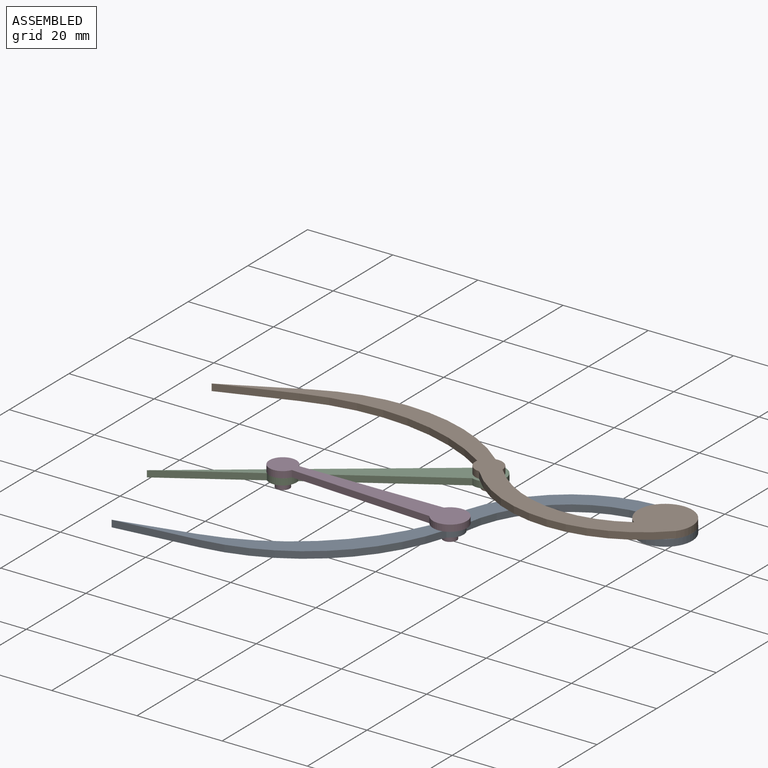
[diagram: assembled view]
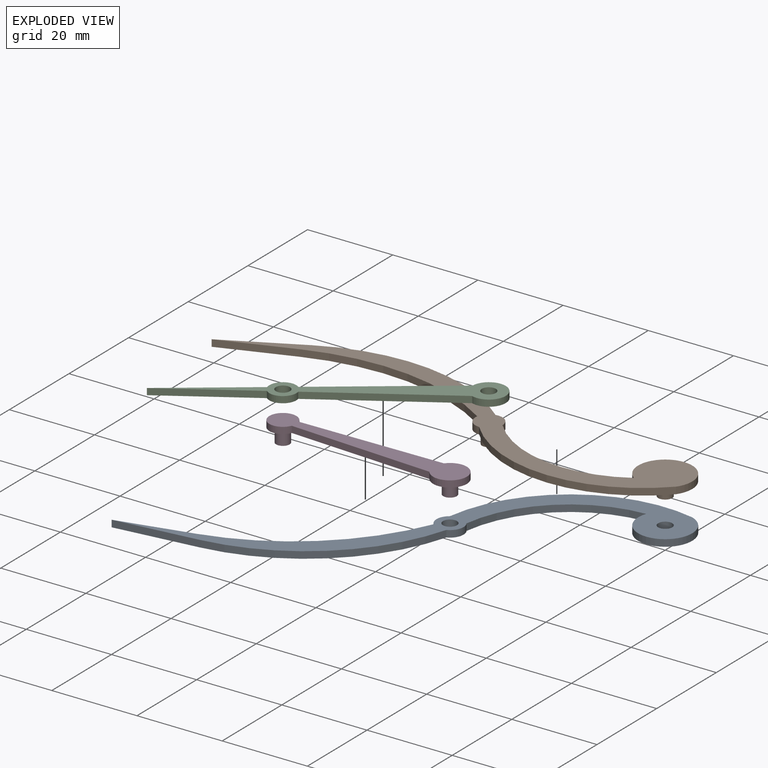
[diagram: exploded view]
GUIDED TOUR — MATED ASSEMBLY (Onshape document de49a4fedd35c420a6f81c07, AutoMate assembly de49a4fedd35c420a6f81c07_cccdab130b011665d8c6db7d_04cd0a10cbeba3ebd86fd0f8_default)

This assembly has 4 components, labeled P0..P3 below (a component is one placed occurrence of a part; the same part can appear more than once), held together by 4 mates. A mate is a constraint between two components; its type names the relative motion it leaves free:
  REVOLUTE — leaves rotation about the listed axis free (a hinge).
Axis/direction vectors are unit vectors and 'through' points are millimeter coordinates, both in the assembly's world frame.

MATES
  1. REVOLUTE "Revolute 2": P1 <-> P2, axis (0.000, 0.000, -1.000) through (-41.40, 0.00, 0.00) mm
  2. REVOLUTE "Revolute 1": P0 <-> P1, axis (0.000, 0.000, 1.000) through (0.00, 0.00, 0.00) mm
  3. REVOLUTE "Revolute 3": P2 <-> P3, axis (0.000, 0.000, 1.000) through (-74.31, -22.07, 0.00) mm
  4. REVOLUTE "Revolute 4": P0 <-> P3, axis (0.000, 0.000, 1.000) through (-34.47, -22.94, 0.00) mm

ASSEMBLY ORDER
  1. P0 — the base component [order heuristic]
  2. P1 [order heuristic]
  3. P3 [order heuristic]
  4. P2 [order heuristic]
Order-tag legend:
  [order heuristic] — this assembly is geometrically interlocked (no collision-free removal order exists), so components are listed in mate-graph order; insertion feasibility is not verified.

Of the 4 components, 4 carry the full construction recipe — the FeatureScript program that regenerates the part's solid from scratch; the rest are supplied as boundary geometry only.
Each toured component is shown spotlighted twice — in the assembled view, then in the exploded view, where a leader line traces a displaced component back to its assembled socket (saturated green if recipe-attached, orange if geometry-only; every other component desaturated gray) — followed by its recipe or geometry summary and the mates that hold it.
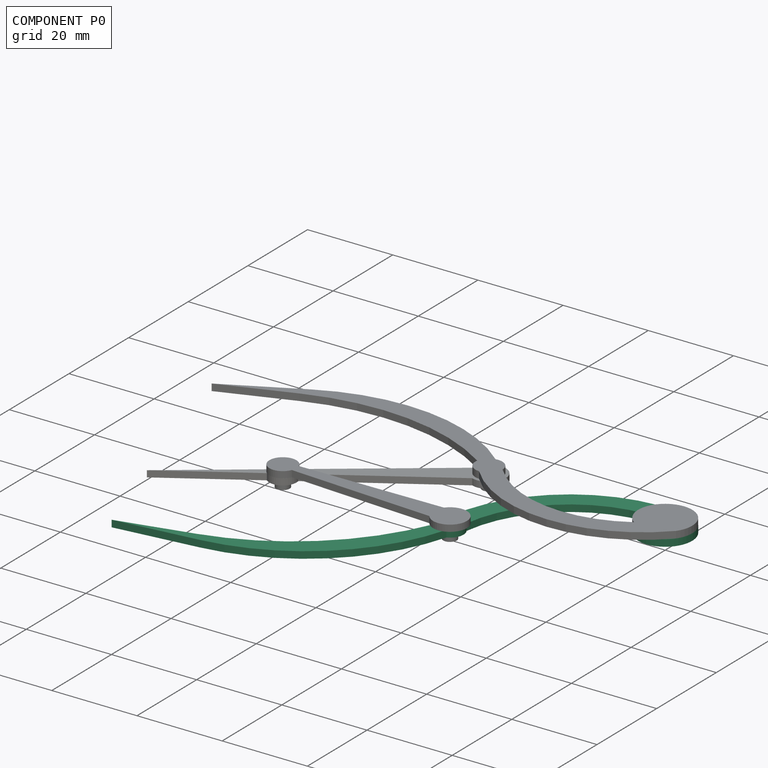
[diagram: component P0 — assembled]
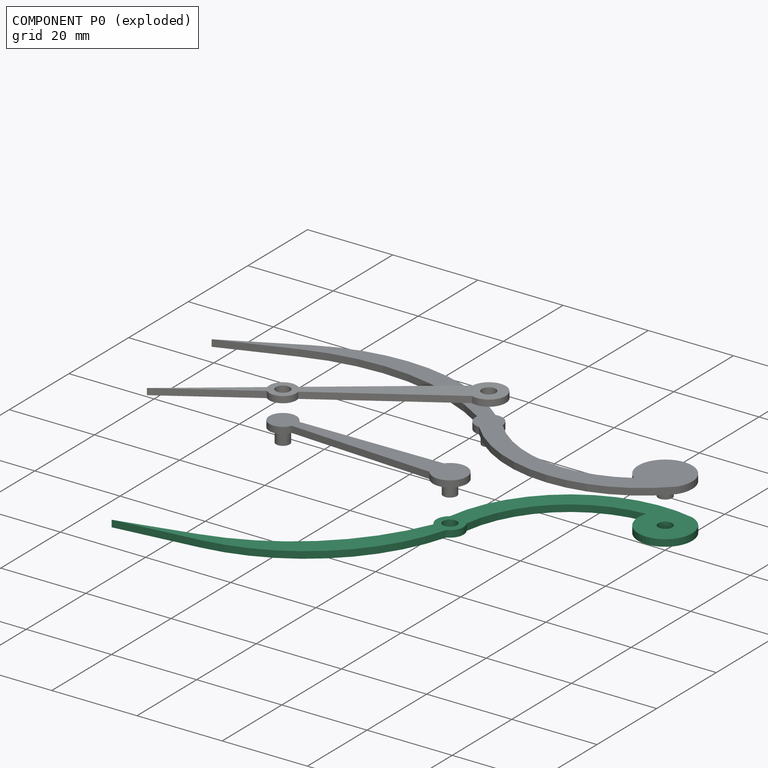
[diagram: component P0 — exploded]
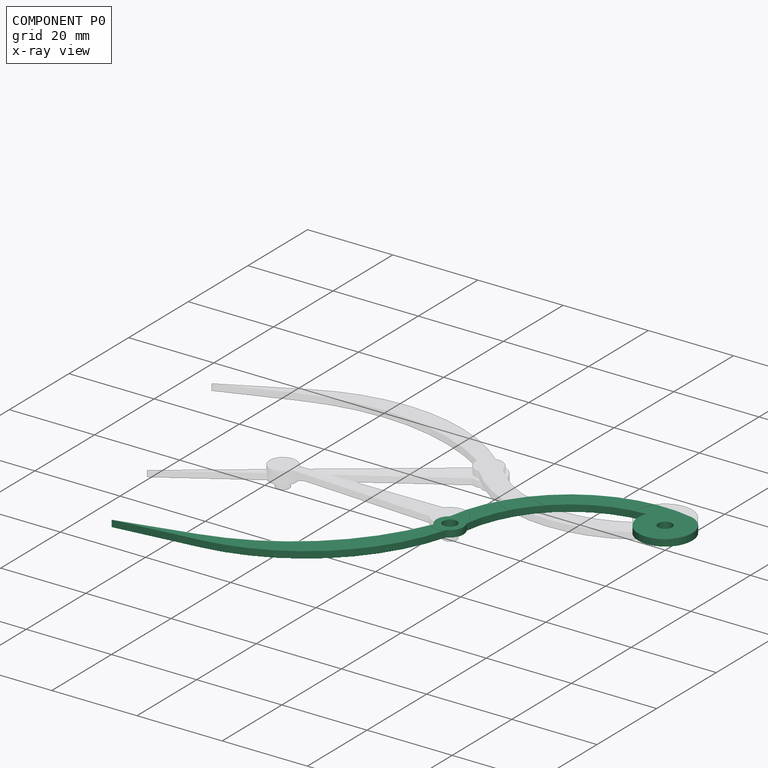
[diagram: component P0 — x-ray view]
COMPONENT P0 — recipe-attached (CADFS 00923419, mesh-verified: the recipe's output STEP matches this component's geometry to below the mesh-comparison resolution (tessellation chordal tolerance ~0.174 mm)).
Held by: REVOLUTE mate "Revolute 1" to P1; REVOLUTE mate "Revolute 4" to P3.
Construction recipe (FeatureScript — the CAD program that rebuilds this solid; sketch coordinates are in the units given by the * unit suffixes, e.g. mm):

FeatureScript 1511;
import(path : "onshape/std/geometry.fs", version : "1511.0");
import(path : "onshape/std/common.fs", version : "1511.0");
const mm = millimeter;
const VERTEX = EntityType.VERTEX;
const EDGE = EntityType.EDGE;
const FACE = EntityType.FACE;
const BODY = EntityType.BODY;
function v(x, y){return vector(x, y);}
function OD(order){return orderDisambiguation(order);}
function OSD(set){return originalSetDisambiguation(set);}
function TD(topology){return topologyDisambiguation(topology);}
function TDD(query){return trueDependencyDisambiguation(query);}
function sQuery(a, b, c) {return sketchEntityQuery(a, b, c);}

annotation { "Feature Type Name" : "Feature", "Feature Type Description" : "" }
export const myFeature = defineFeature(function(context is Context, id is Id, definition is map)
    precondition{}
    {
        {
            var Q0;
            Q0=qCreatedBy(makeId("Top.planeOp"),FACE);
            var sketch = newSketch(context, id + "F0", { "sketchPlane" : qUnion([Q0])});
            skArc(sketch, "E0", {"start": v(-38.23, 0.04) * mm, "mid": v(-21.93, -8.78) * mm, "end": v(-3.77, -5.1) * mm});
            skArc(sketch, "E1", {"start": v(-41.48, -3.17) * mm, "mid": v(-18.29, -13.65) * mm, "end": v(5.15, -3.72) * mm});
            skArc(sketch, "E2", {"start": v(5.15, -3.72) * mm, "mid": v(-0.98, 6.27) * mm, "end": v(-3.77, -5.1) * mm});
            skLineSegment(sketch, "E3", {"start": v(-106.5, 0) * mm, "end": v(-89.19, 8.82) * mm});
            skLineSegment(sketch, "E4", {"start": v(-106.5, 0) * mm, "end": v(-90.02, 6) * mm});
            skLineSegment(sketch, "E5", {"start": v(-106.5, 0) * mm, "end": v(-87.48, 0) * mm, "construction": true});
            skArc(sketch, "E6", {"start": v(-44.53, 0.57) * mm, "mid": v(-66.63, 8.7) * mm, "end": v(-90.02, 6) * mm});
            skArc(sketch, "E7", {"start": v(-42.02, 3.11) * mm, "mid": v(-64.73, 13.16) * mm, "end": v(-89.19, 8.82) * mm});
            skArc(sketch, "E8", {"start": v(-38.23, 0.04) * mm, "mid": v(-39.4, 2.47) * mm, "end": v(-42.02, 3.11) * mm});
            skArc(sketch, "E9", {"start": v(-44.53, 0.57) * mm, "mid": v(-43.87, -2) * mm, "end": v(-41.48, -3.17) * mm});
            skLineSegment(sketch, "E10", {"start": v(-69.85, -29.13) * mm, "end": v(-72.64, -41.74) * mm, "construction": true});
            skCircle(sketch, "E11", {"center": v(-41.4, 0) * mm, "radius": 1.65 * mm});
            skCircle(sketch, "E12", {"center": v(0, 0) * mm, "radius": 1.65 * mm});
            skSolve(sketch);
        }
        {
            var Q0;
            Q0=qSketchRegion(id+"F0",true);
            extrude(context, id + "F1", {"entities" : qUnion([Q0]), "depth" : 1.6 * mm, "offsetDistance" : 25.4 * mm});
        }
    });
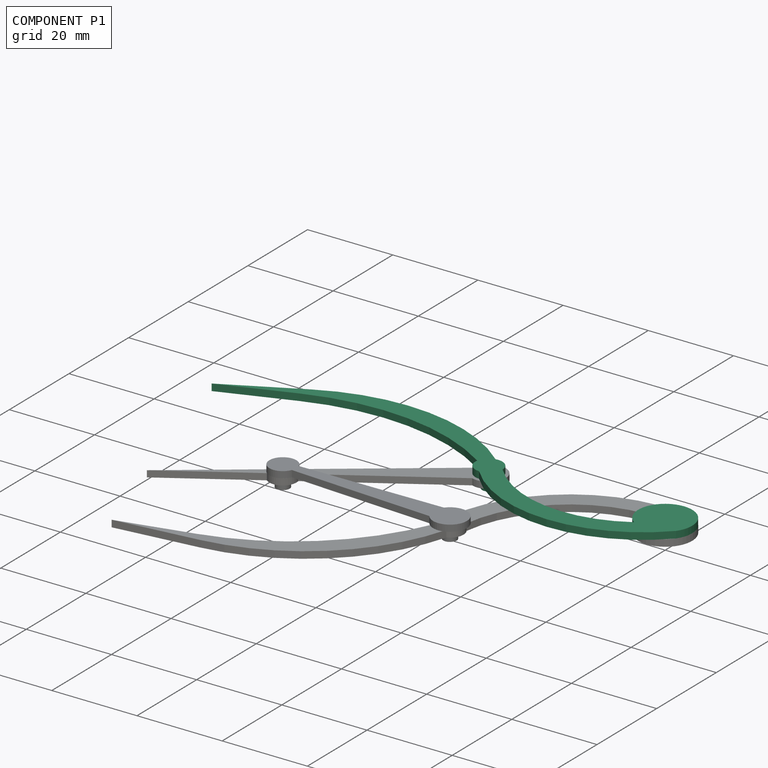
[diagram: component P1 — assembled]
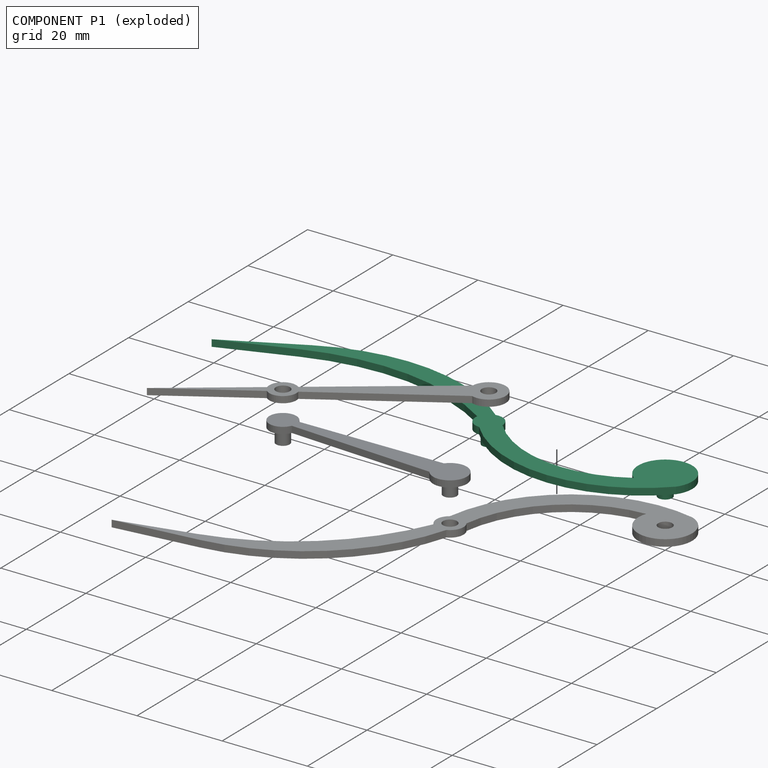
[diagram: component P1 — exploded]
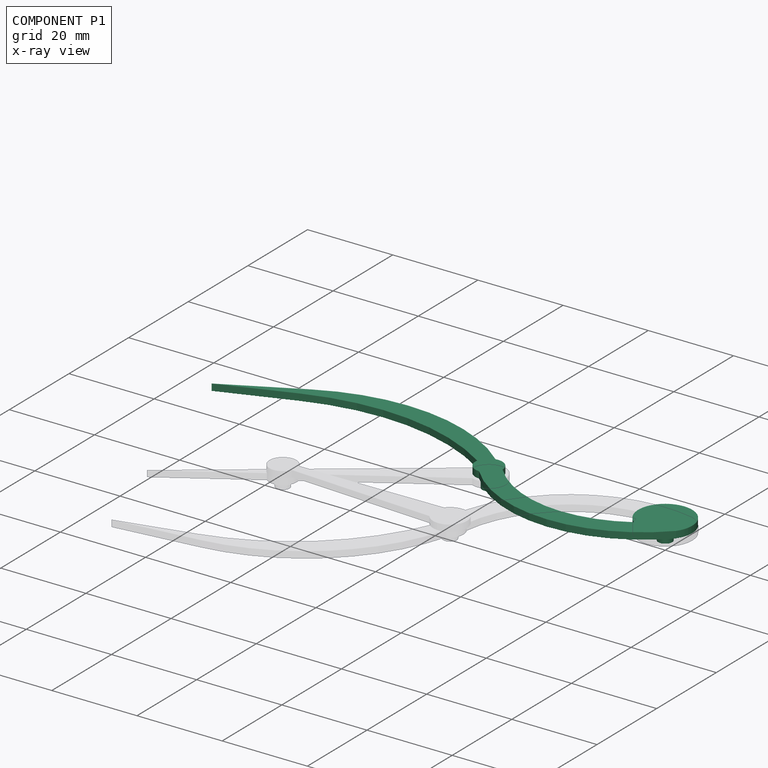
[diagram: component P1 — x-ray view]
COMPONENT P1 — recipe-attached (CADFS 00923418, mesh-verified: the recipe's output STEP matches this component's geometry to below the mesh-comparison resolution (tessellation chordal tolerance ~0.174 mm)).
Held by: REVOLUTE mate "Revolute 2" to P2; REVOLUTE mate "Revolute 1" to P0.
Construction recipe (FeatureScript — the CAD program that rebuilds this solid; sketch coordinates are in the units given by the * unit suffixes, e.g. mm):

FeatureScript 1511;
import(path : "onshape/std/geometry.fs", version : "1511.0");
import(path : "onshape/std/common.fs", version : "1511.0");
const mm = millimeter;
const VERTEX = EntityType.VERTEX;
const EDGE = EntityType.EDGE;
const FACE = EntityType.FACE;
const BODY = EntityType.BODY;
function v(x, y){return vector(x, y);}
function OD(order){return orderDisambiguation(order);}
function OSD(set){return originalSetDisambiguation(set);}
function TD(topology){return topologyDisambiguation(topology);}
function TDD(query){return trueDependencyDisambiguation(query);}
function sQuery(a, b, c) {return sketchEntityQuery(a, b, c);}

annotation { "Feature Type Name" : "Feature", "Feature Type Description" : "" }
export const myFeature = defineFeature(function(context is Context, id is Id, definition is map)
    precondition{}
    {
        {
            var Q0;
            Q0=qCreatedBy(makeId("Top.planeOp"),FACE);
            var sketch = newSketch(context, id + "F0", { "sketchPlane" : qUnion([Q0])});
            skArc(sketch, "E0", {"start": v(-38.23, 0.04) * mm, "mid": v(-21.93, -8.78) * mm, "end": v(-3.77, -5.1) * mm});
            skArc(sketch, "E1", {"start": v(-41.48, -3.17) * mm, "mid": v(-18.29, -13.65) * mm, "end": v(5.15, -3.72) * mm});
            skArc(sketch, "E2", {"start": v(5.15, -3.72) * mm, "mid": v(-0.98, 6.27) * mm, "end": v(-3.77, -5.1) * mm});
            skLineSegment(sketch, "E3", {"start": v(-106.5, 0) * mm, "end": v(-89.19, 8.82) * mm});
            skLineSegment(sketch, "E4", {"start": v(-106.5, 0) * mm, "end": v(-90.02, 6) * mm});
            skLineSegment(sketch, "E5", {"start": v(-106.5, 0) * mm, "end": v(-87.48, 0) * mm, "construction": true});
            skArc(sketch, "E6", {"start": v(-44.53, 0.57) * mm, "mid": v(-66.63, 8.7) * mm, "end": v(-90.02, 6) * mm});
            skArc(sketch, "E7", {"start": v(-42.02, 3.11) * mm, "mid": v(-64.73, 13.16) * mm, "end": v(-89.19, 8.82) * mm});
            skArc(sketch, "E8", {"start": v(-38.23, 0.04) * mm, "mid": v(-39.4, 2.47) * mm, "end": v(-42.02, 3.11) * mm});
            skArc(sketch, "E9", {"start": v(-44.53, 0.57) * mm, "mid": v(-43.87, -2) * mm, "end": v(-41.48, -3.17) * mm});
            skLineSegment(sketch, "E10", {"start": v(-69.85, -29.13) * mm, "end": v(-72.64, -41.74) * mm, "construction": true});
            skCircle(sketch, "E11", {"center": v(-41.4, 0) * mm, "radius": 1.59 * mm});
            skCircle(sketch, "E12", {"center": v(0, 0) * mm, "radius": 1.65 * mm});
            skSolve(sketch);
        }
        {
            var Q0;
            Q0 = qSketchRegion(id + "F0", true);
            extrude(context, id + "F1", {"entities" : qUnion([Q0]), "depth" : 1.6 * mm, "offsetDistance" : 25.4 * mm});
        }
        {
            var Q0;
            Q0=makeQuery(id+"F1.opExtrude","CAP_FACE",FACE,{"disambiguationData":[OSD([sQuery(id+"F0.wireOp",EDGE,"E0"),sQuery(id+"F0.wireOp",EDGE,"E1"),sQuery(id+"F0.wireOp",EDGE,"E2"),sQuery(id+"F0.wireOp",EDGE,"E3"),sQuery(id+"F0.wireOp",EDGE,"E4"),sQuery(id+"F0.wireOp",EDGE,"E6"),sQuery(id+"F0.wireOp",EDGE,"E7"),sQuery(id+"F0.wireOp",EDGE,"E8"),sQuery(id+"F0.wireOp",EDGE,"E9"),sQuery(id+"F0.wireOp",EDGE,"E11"),sQuery(id+"F0.wireOp",EDGE,"E12")])],"isStart":false});
            var sketch = newSketch(context, id + "F2", { "sketchPlane" : qUnion([Q0])});
            skCircle(sketch, "E13", {"center": v(-41.4, 0) * mm, "radius": 1.59 * mm});
            skCircle(sketch, "E14", {"center": v(0, 0) * mm, "radius": 1.65 * mm});
            skSolve(sketch);
        }
        {
            var Q0;
            Q0 = qSketchRegion(id + "F2", true);
            extrude(context, id + "F3", {"entities" : qUnion([Q0]), "operationType" : NewBodyOperationType.ADD, "oppositeDirection" : true, "depth" : 4.78 * mm, "offsetDistance" : 25.4 * mm});
        }
    });
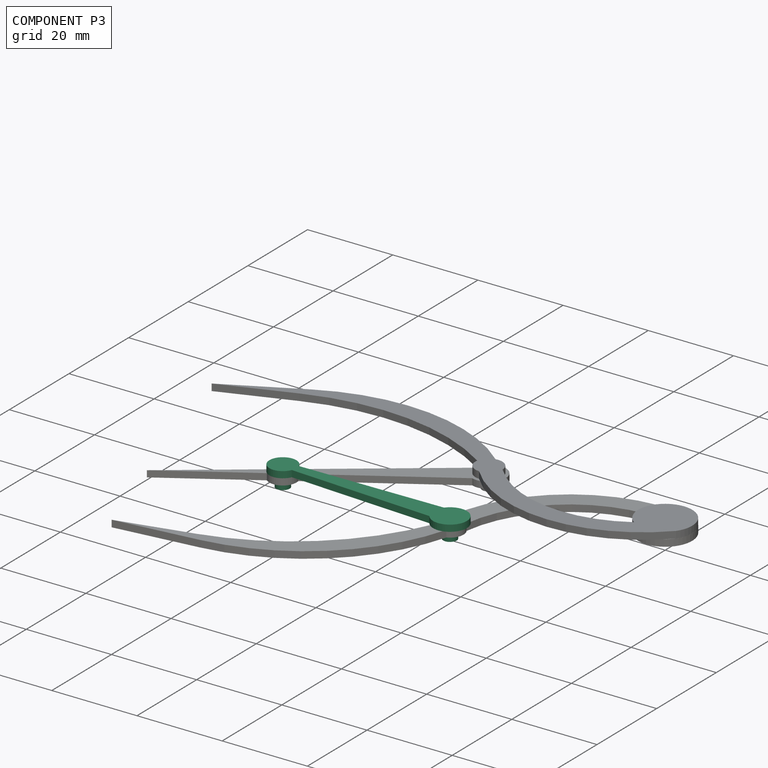
[diagram: component P3 — assembled]
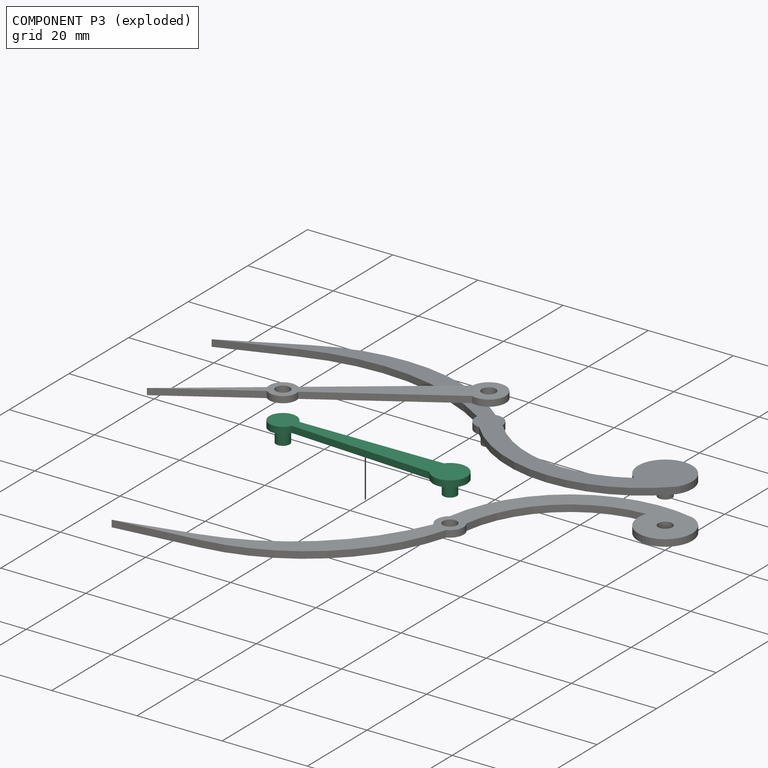
[diagram: component P3 — exploded]
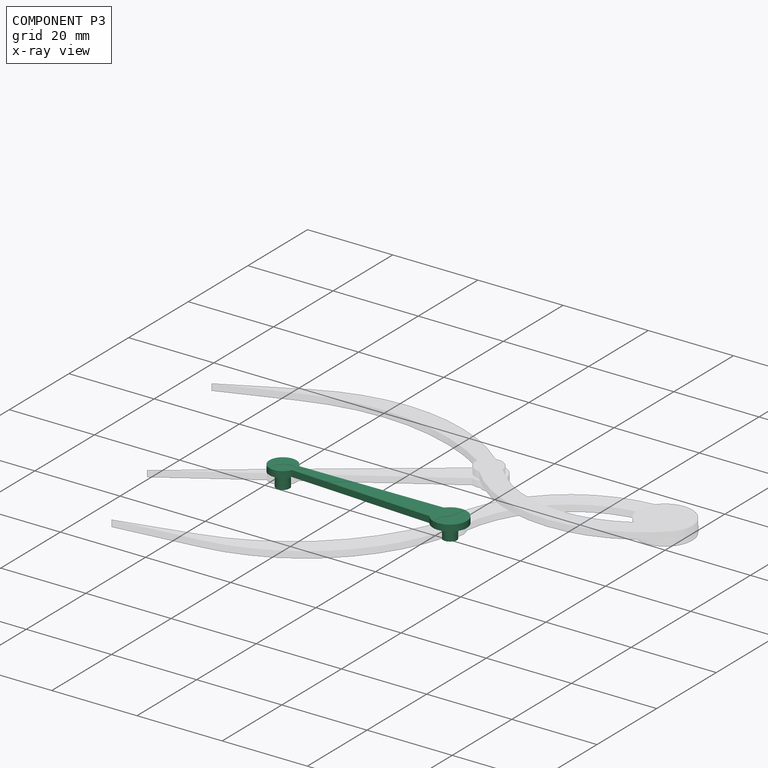
[diagram: component P3 — x-ray view]
COMPONENT P3 — recipe-attached (CADFS 00923421, mesh-verified: the recipe's output STEP matches this component's geometry to below the mesh-comparison resolution (tessellation chordal tolerance ~0.0718 mm)).
Held by: REVOLUTE mate "Revolute 3" to P2; REVOLUTE mate "Revolute 4" to P0.
Construction recipe (FeatureScript — the CAD program that rebuilds this solid; sketch coordinates are in the units given by the * unit suffixes, e.g. mm):

FeatureScript 1511;
import(path : "onshape/std/geometry.fs", version : "1511.0");
import(path : "onshape/std/common.fs", version : "1511.0");
const mm = millimeter;
const VERTEX = EntityType.VERTEX;
const EDGE = EntityType.EDGE;
const FACE = EntityType.FACE;
const BODY = EntityType.BODY;
function v(x, y){return vector(x, y);}
function OD(order){return orderDisambiguation(order);}
function OSD(set){return originalSetDisambiguation(set);}
function TD(topology){return topologyDisambiguation(topology);}
function TDD(query){return trueDependencyDisambiguation(query);}
function sQuery(a, b, c) {return sketchEntityQuery(a, b, c);}

annotation { "Feature Type Name" : "Feature", "Feature Type Description" : "" }
export const myFeature = defineFeature(function(context is Context, id is Id, definition is map)
    precondition{}
    {
        {
            var Q0;
            Q0=qCreatedBy(makeId("Top.planeOp"),FACE);
            var sketch = newSketch(context, id + "F0", { "sketchPlane" : qUnion([Q0])});
            skCircle(sketch, "E0", {"center": v(0, 0) * mm, "radius": 1.59 * mm});
            skCircle(sketch, "E1", {"center": v(-39.85, 0) * mm, "radius": 1.59 * mm});
            skArc(sketch, "E2", {"start": v(-3.18, -2.38) * mm, "mid": v(3.97, 0) * mm, "end": v(-3.17, 2.38) * mm});
            skArc(sketch, "E3", {"start": v(-36.9, 1.14) * mm, "mid": v(-43.03, 0) * mm, "end": v(-36.9, -1.14) * mm});
            skLineSegment(sketch, "E4", {"start": v(-36.9, 1.14) * mm, "end": v(-3.17, 2.38) * mm});
            skLineSegment(sketch, "E5", {"start": v(-3.17, -2.38) * mm, "end": v(-36.9, -1.14) * mm});
            skSolve(sketch);
        }
        {
            var Q0;
            Q0=qSketchRegion(id+"F0",true);
            extrude(context, id + "F1", {"entities" : qUnion([Q0]), "depth" : 1.52 * mm, "offsetDistance" : 25.4 * mm});
        }
        {
            var Q0;
            Q0=makeQuery(id+"F1.opExtrude","CAP_FACE",FACE,{"disambiguationData":[OSD([sQuery(id+"F0.wireOp",EDGE,"E0"),sQuery(id+"F0.wireOp",EDGE,"E1"),sQuery(id+"F0.wireOp",EDGE,"E2"),sQuery(id+"F0.wireOp",EDGE,"E3"),sQuery(id+"F0.wireOp",EDGE,"E4"),sQuery(id+"F0.wireOp",EDGE,"E5")])],"isStart":false});
            var sketch = newSketch(context, id + "F2", { "sketchPlane" : qUnion([Q0])});
            skCircle(sketch, "E6", {"center": v(-39.85, 0) * mm, "radius": 1.59 * mm});
            skCircle(sketch, "E7", {"center": v(0, 0) * mm, "radius": 1.59 * mm});
            skSolve(sketch);
        }
        {
            var Q0;
            Q0 = qSketchRegion(id + "F2", true);
            extrude(context, id + "F3", {"entities" : qUnion([Q0]), "operationType" : NewBodyOperationType.ADD, "oppositeDirection" : true, "depth" : 4.78 * mm, "offsetDistance" : 25.4 * mm});
        }
    });
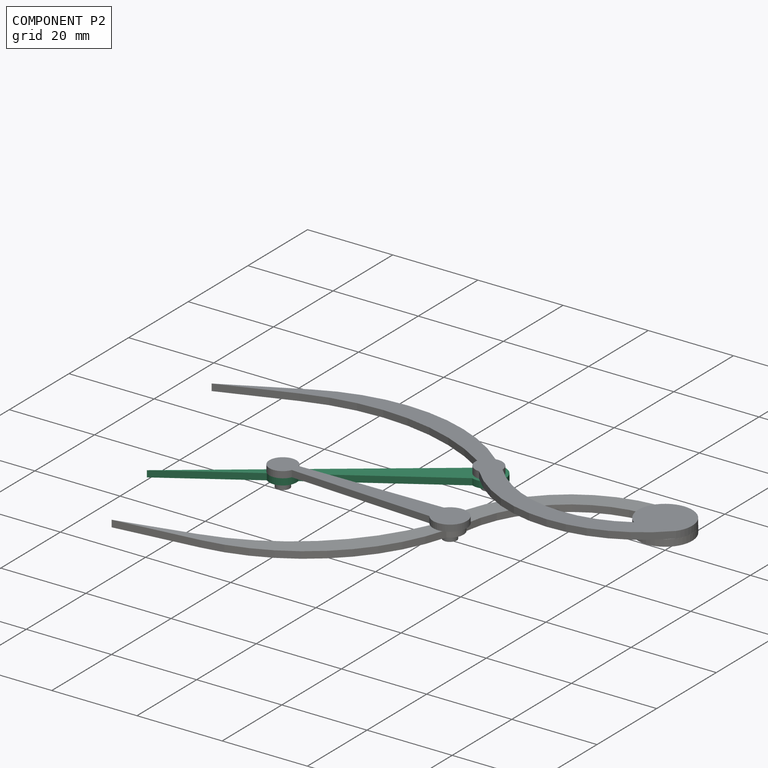
[diagram: component P2 — assembled]
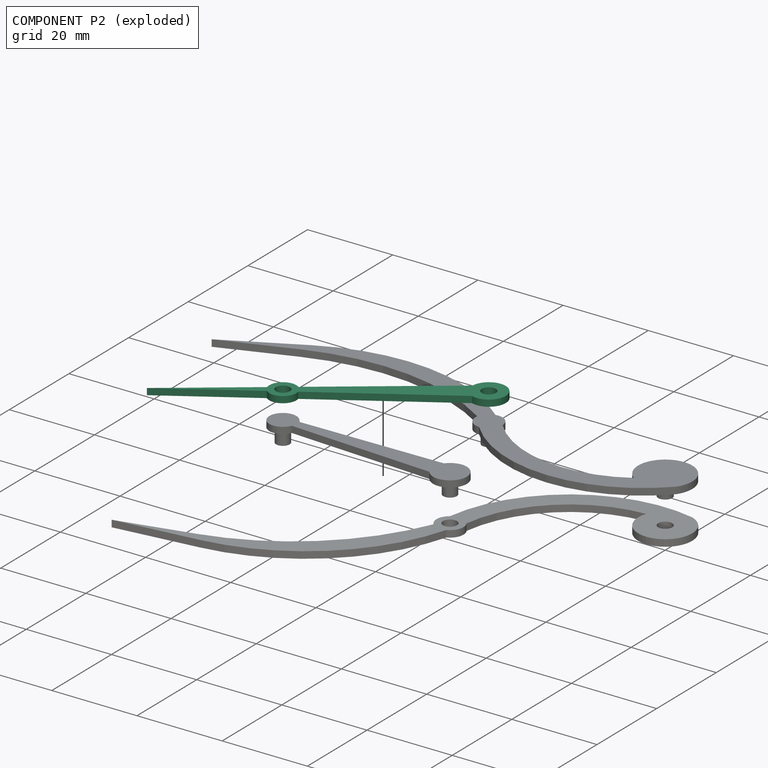
[diagram: component P2 — exploded]
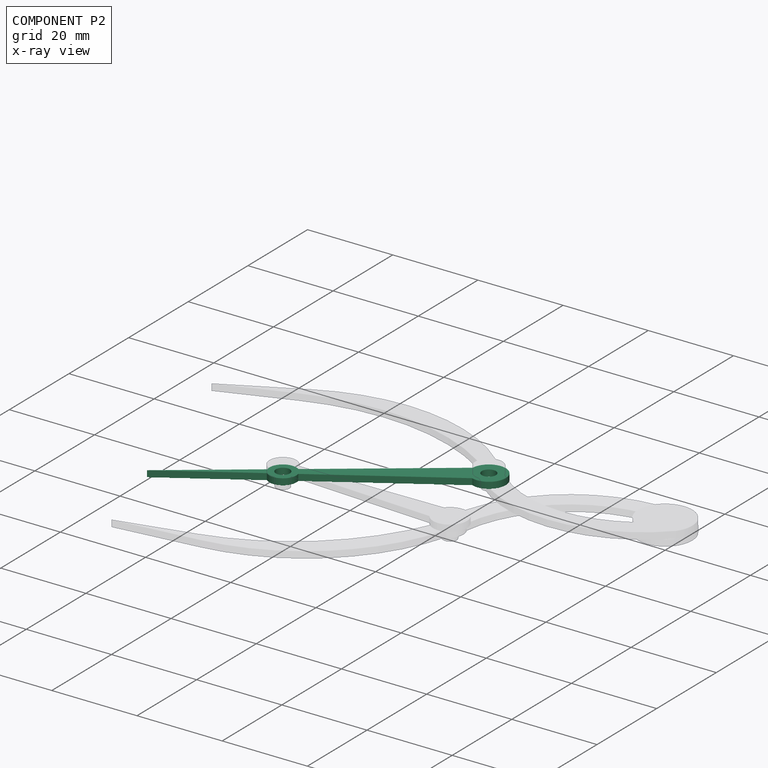
[diagram: component P2 — x-ray view]
COMPONENT P2 — recipe-attached (CADFS 00923420, mesh-verified: the recipe's output STEP matches this component's geometry to below the mesh-comparison resolution (tessellation chordal tolerance ~0.105 mm)).
Held by: REVOLUTE mate "Revolute 2" to P1; REVOLUTE mate "Revolute 3" to P3.
Construction recipe (FeatureScript — the CAD program that rebuilds this solid; sketch coordinates are in the units given by the * unit suffixes, e.g. mm):

FeatureScript 1511;
import(path : "onshape/std/geometry.fs", version : "1511.0");
import(path : "onshape/std/common.fs", version : "1511.0");
const mm = millimeter;
const VERTEX = EntityType.VERTEX;
const EDGE = EntityType.EDGE;
const FACE = EntityType.FACE;
const BODY = EntityType.BODY;
function v(x, y){return vector(x, y);}
function OD(order){return orderDisambiguation(order);}
function OSD(set){return originalSetDisambiguation(set);}
function TD(topology){return topologyDisambiguation(topology);}
function TDD(query){return trueDependencyDisambiguation(query);}
function sQuery(a, b, c) {return sketchEntityQuery(a, b, c);}

annotation { "Feature Type Name" : "Feature", "Feature Type Description" : "" }
export const myFeature = defineFeature(function(context is Context, id is Id, definition is map)
    precondition{}
    {
        {
            var Q0;
            Q0=qCreatedBy(makeId("Top.planeOp"),FACE);
            var sketch = newSketch(context, id + "F0", { "sketchPlane" : qUnion([Q0])});
            skCircle(sketch, "E0", {"center": v(0, 0) * mm, "radius": 1.65 * mm});
            skCircle(sketch, "E1", {"center": v(-39.62, 0) * mm, "radius": 1.65 * mm});
            skArc(sketch, "E2", {"start": v(-3.18, -2.38) * mm, "mid": v(3.97, 0) * mm, "end": v(-3.17, 2.38) * mm});
            skArc(sketch, "E3", {"start": v(-36.65, 1.1) * mm, "mid": v(-39.74, 3.17) * mm, "end": v(-42.67, 0.88) * mm});
            skArc(sketch, "E4", {"start": v(-42.67, -0.88) * mm, "mid": v(-39.74, -3.17) * mm, "end": v(-36.65, -1.1) * mm});
            skLineSegment(sketch, "E5", {"start": v(-42.67, 0.88) * mm, "end": v(-65.79, 0) * mm});
            skLineSegment(sketch, "E6", {"start": v(-42.67, -0.88) * mm, "end": v(-65.79, 0) * mm});
            skLineSegment(sketch, "E7", {"start": v(-36.65, 1.1) * mm, "end": v(-3.17, 2.38) * mm});
            skLineSegment(sketch, "E8", {"start": v(-3.17, -2.38) * mm, "end": v(-36.65, -1.1) * mm});
            skSolve(sketch);
        }
        {
            var Q0;
            Q0 = qSketchRegion(id + "F0", true);
            extrude(context, id + "F1", {"entities" : qUnion([Q0]), "depth" : 1.52 * mm, "offsetDistance" : 25.4 * mm});
        }
    });
PROVENANCE & LICENSES
Assembly (occurrences, transforms, mates, per-part STEP geometry): AutoMate dataset, Zenodo record 7776208, CC0.
Construction recipes: CADFS (HuggingFace VladPyatov/CADFS, CC-BY-4.0, layered over the ABC dataset), FeatureScript reconstruction programs keyed by ABC model id.
Join: ABC meta listings map ABC model id -> Onshape documentId; within a shared document, parts are matched by geometric signature (bounding-box dims + volume at 0.1% relative tolerance, exact B-rep face/solid counts).
Verification: 4 of this assembly's 4 components carry a recipe attachment, and every attachment is mesh-verified: the CADFS STEP and the AutoMate member STEP were compared as meshes in their shared local frame (symmetric sampled-point-to-mesh distance); worst across the 4 attachments: below the mesh-comparison resolution (tessellation chordal tolerance ~0.174 mm) on a 116 mm part.
Renders: orthographic iso camera (az 35 / el 25); the floor grid conveys scale (grid pitch printed in each image; no ruler). In the exploded view each component is displaced by its stored offset vector: the offsets alone carry the explosion direction (mate normal/axis signs are not orientation cues and do not encode it), and separation distances are assigned per mate-chain, not proportionally to assembly-order depth.
